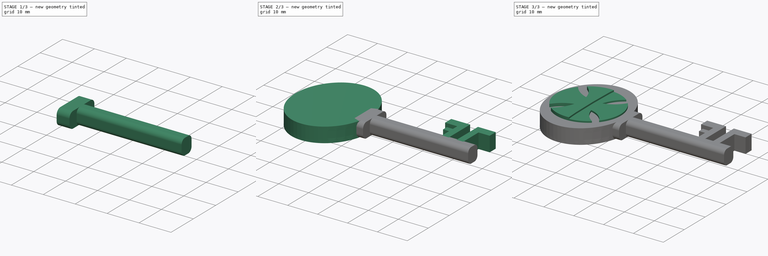
[diagram: build sequence overview — one tinted view per stage of 3, left to right]
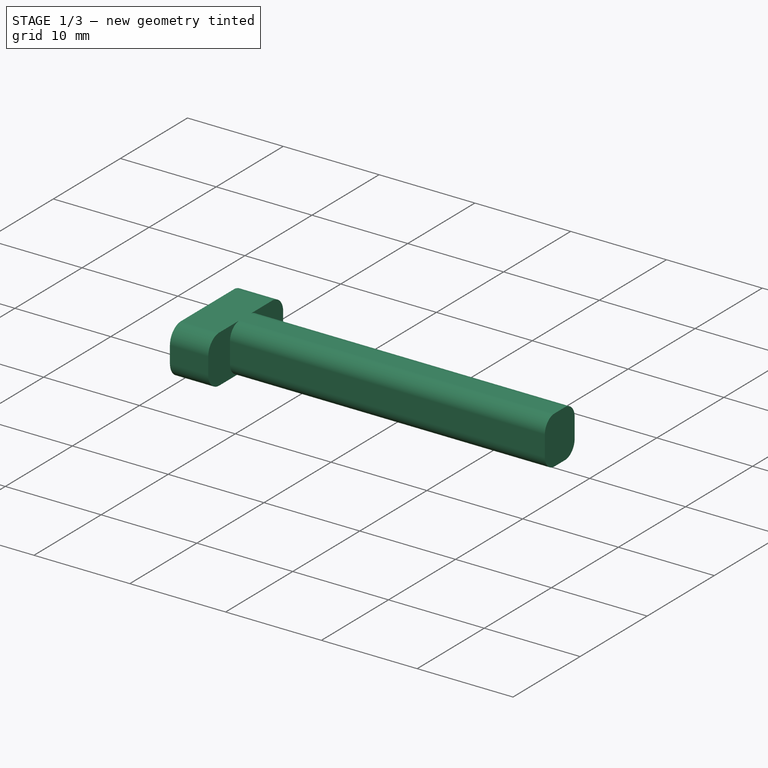
[diagram: stage 1 of 3 — iso view after this stage's code; geometry added in this stage tinted green]
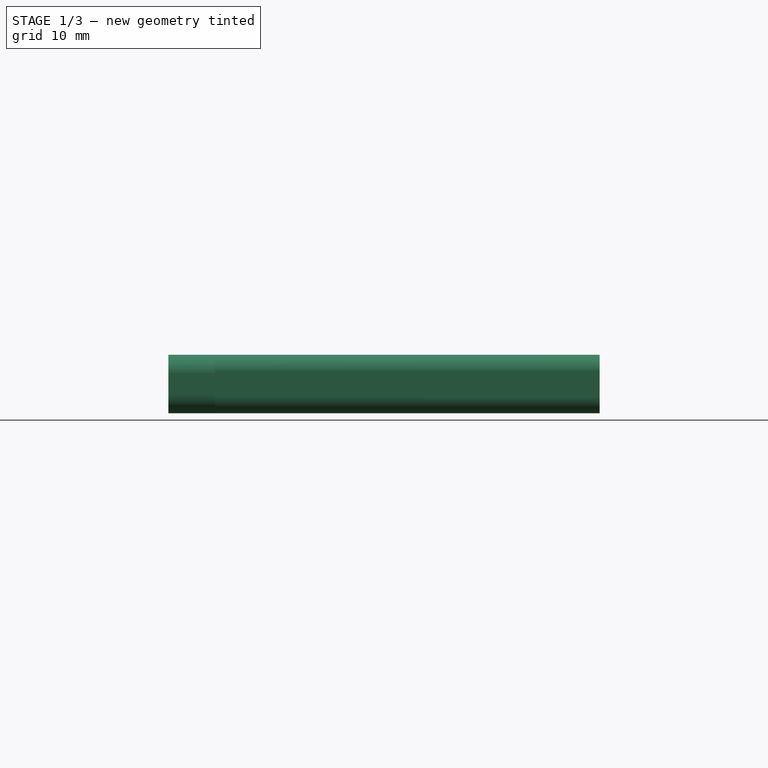
[diagram: stage 1 of 3 — front view after this stage's code; geometry added in this stage tinted green]
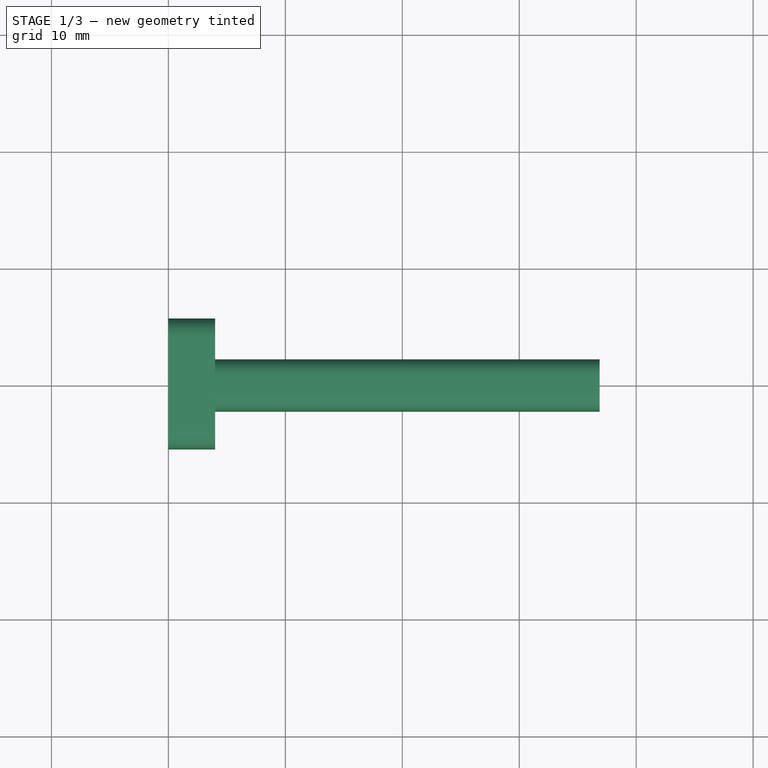
[diagram: stage 1 of 3 — top view after this stage's code; geometry added in this stage tinted green]
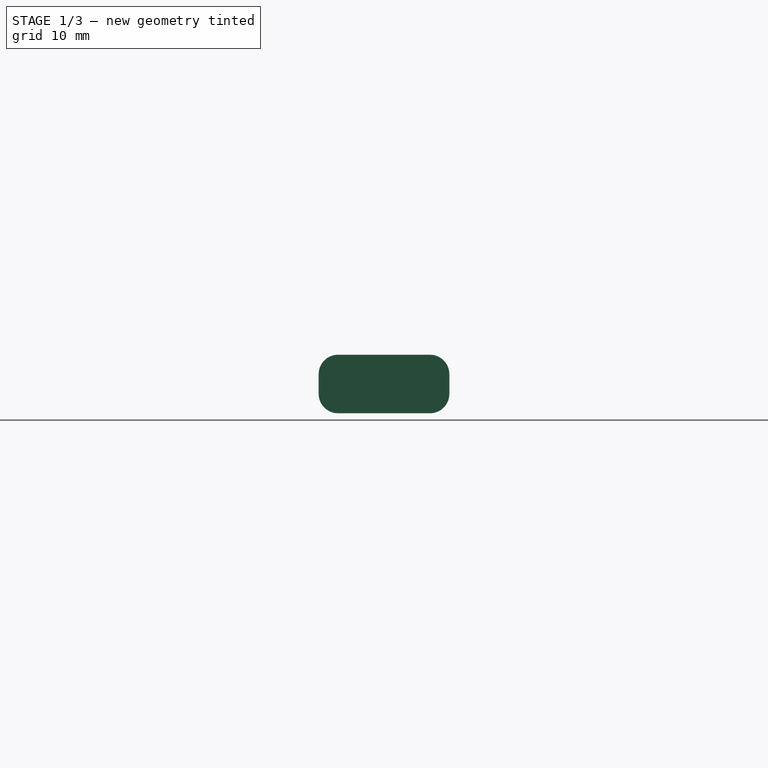
[diagram: stage 1 of 3 — right view after this stage's code; geometry added in this stage tinted green]
FCSTD DOCUMENT  (FreeCAD 0.21R33771 (Git))
Label: llave_teleton
License: All rights reserved
LicenseURL: http://en.wikipedia.org/wiki/All_rights_reserved
objects: Sketcher::SketchObject×9, PartDesign::Pad×5, Image::ImagePlane×1, PartDesign::Pocket×1, PartDesign::Body×1
note: 22 computed .brp shape members not serialized (recipe doc carries the construction recipe); baked Part::Feature solids carry a one-line shape summary decoded from their .brp

FEATURE [Sketcher::SketchObject] Sketch002
  AttachmentOffset = pos=(0,0,46.87) rot=(0,0,1;0rad)
  FullyConstrained = true
  MapMode = 5
  Placement = pos=(46.87,-1.04e-14,1.04e-14) rot=(0.57735,0.57735,0.57735;2.0944rad)
  Support = -> [YZ_Plane002]
  sketch-geometry (8):
    g0: LineSegment StartX=-0.77 StartY=5 StartZ=0 EndX=0.77 EndY=5 EndZ=0
    g1: LineSegment StartX=2.22 StartY=3.55 StartZ=0 EndX=2.22 EndY=1.45 EndZ=0
    g2: LineSegment StartX=0.77 StartY=4e-16 StartZ=0 EndX=-0.77 EndY=4e-16 EndZ=0
    g3: LineSegment StartX=-2.22 StartY=1.45 StartZ=0 EndX=-2.22 EndY=3.55 EndZ=0
    g4: ArcOfCircle CenterX=-0.77 CenterY=3.55 CenterZ=0 NormalX=0 NormalY=0 NormalZ=1 AngleXU=0 Radius=1.45 StartAngle=1.5708 EndAngle=3.14159
    g5: ArcOfCircle CenterX=0.77 CenterY=3.55 CenterZ=0 NormalX=0 NormalY=0 NormalZ=1 AngleXU=0 Radius=1.45 StartAngle=0 EndAngle=1.5708
    g6: ArcOfCircle CenterX=0.77 CenterY=1.45 CenterZ=0 NormalX=0 NormalY=0 NormalZ=1 AngleXU=0 Radius=1.45 StartAngle=4.71239 EndAngle=6.28319
    g7: ArcOfCircle CenterX=-0.77 CenterY=1.45 CenterZ=0 NormalX=0 NormalY=0 NormalZ=1 AngleXU=0 Radius=1.45 StartAngle=3.14159 EndAngle=4.71239
  constraints (19):
    c: Horizontal(g2)
    c: Vertical(g1)
    c: Vertical(g3)
    c: Tangent(g0,g4) = 1.5708
    c: Tangent(g3,g4) = 1.5708
    c: Diameter(g4) = 2.9
    c: Tangent(g0,g5) = 1.5708
    c: Tangent(g1,g5) = 1.5708
    c: Tangent(g1,g6) = 1.5708
    c: Tangent(g2,g6) = 1.5708
    c: Tangent(g3,g7) = 1.5708
    c: Tangent(g2,g7) = 1.5708
    c: Diameter(g5) = 2.9
    c: Diameter(g6) = 2.9
    c: Diameter(g7) = 2.9
    c: Symmetric(g0,g0,g-2)
    c: Distance(g3,g1) = 4.44
    c: Distance(g0,g2) = 5
    c: DistanceY(g-1,g0) = 5
FEATURE [PartDesign::Pad] Pad002
  Direction = (1,-2e-16,3e-16)
  Length = 35
  Length2 = 10
  Placement = pos=(0,0,0) rot=(1,1,1;2.0944rad)
  Profile = -> Sketch002
  ReferenceAxis = -> Sketch002 [N_Axis]
  Reversed = true
  Type = 0
FEATURE [Sketcher::SketchObject] Sketch003
  AttachmentOffset = pos=(0,0,14) rot=(0,0,1;0rad)
  FullyConstrained = false
  MapMode = 5
  Placement = pos=(14,-3.1e-15,3.1e-15) rot=(0.57735,0.57735,0.57735;2.0944rad)
  Support = -> [YZ_Plane002]
  sketch-geometry (8):
    g0: LineSegment StartX=-3.80355 StartY=4e-16 StartZ=0 EndX=4.06645 EndY=4e-16 EndZ=0
    g1: LineSegment StartX=5.71645 StartY=1.65 StartZ=0 EndX=5.71645 EndY=3.35 EndZ=0
    g2: LineSegment StartX=4.06645 StartY=5 StartZ=0 EndX=-3.80355 EndY=5 EndZ=0
    g3: LineSegment StartX=-5.45355 StartY=3.35 StartZ=0 EndX=-5.45355 EndY=1.65 EndZ=0
    g4: ArcOfCircle CenterX=-3.80355 CenterY=3.35 CenterZ=0 NormalX=0 NormalY=0 NormalZ=1 AngleXU=0 Radius=1.65 StartAngle=1.5708 EndAngle=3.14159
    g5: ArcOfCircle CenterX=-3.80355 CenterY=1.65 CenterZ=0 NormalX=0 NormalY=0 NormalZ=1 AngleXU=0 Radius=1.65 StartAngle=3.14159 EndAngle=4.71239
    g6: ArcOfCircle CenterX=4.06645 CenterY=1.65 CenterZ=0 NormalX=0 NormalY=0 NormalZ=1 AngleXU=0 Radius=1.65 StartAngle=4.71239 EndAngle=6.28319
    g7: ArcOfCircle CenterX=4.06645 CenterY=3.35 CenterZ=0 NormalX=0 NormalY=0 NormalZ=1 AngleXU=0 Radius=1.65 StartAngle=0 EndAngle=1.5708
  constraints (19):
    c: Horizontal(g0)
    c: Vertical(g1)
    c: Vertical(g3)
    c: Tangent(g2,g4) = -1.5708
    c: Tangent(g3,g4) = -1.5708
    c: Tangent(g3,g5) = -1.5708
    c: Tangent(g0,g5) = -1.5708
    c: Tangent(g0,g6) = -1.5708
    c: Tangent(g1,g6) = -1.5708
    c: Tangent(g2,g7) = -1.5708
    c: Tangent(g1,g7) = -1.5708
    c: Diameter(g4) = 3.3
    c: Diameter(g7) = 3.3
    c: Diameter(g6) = 3.3
    c: Diameter(g5) = 3.3
    c: Horizontal(g2)
    c: Distance(g2,g0) = 5
    c: Distance(g1,g3) = 11.17
    c: Distance(g-1,g2) = 5
FEATURE [PartDesign::Pad] Pad003
  BaseFeature = -> Pad002
  Direction = (1,-2e-16,3e-16)
  Length = 4
  Length2 = 10
  Placement = pos=(0,0,0) rot=(1,1,1;2.0944rad)
  Profile = -> Sketch003
  ReferenceAxis = -> Sketch003 [N_Axis]
  Reversed = true
  Type = 0
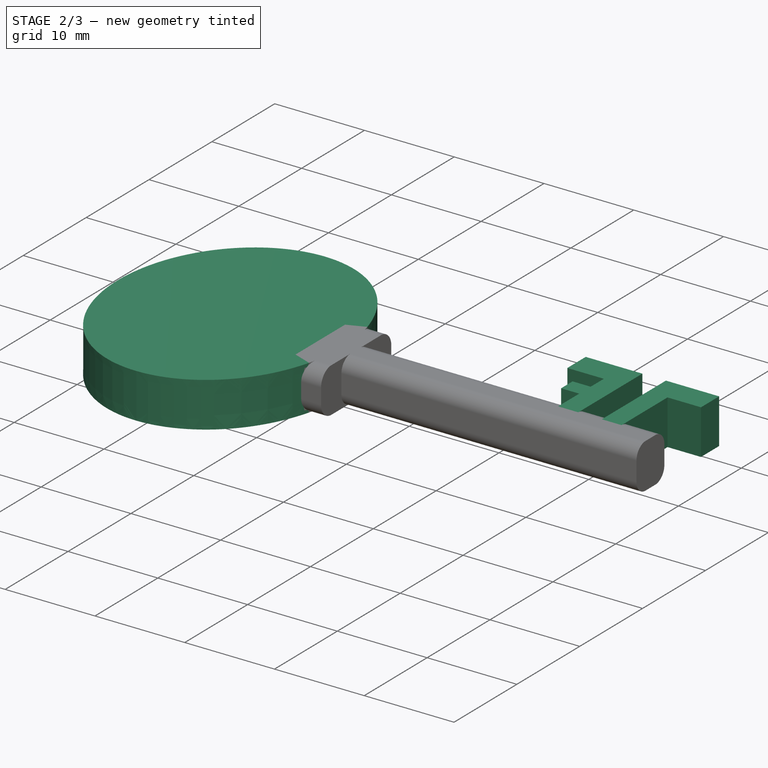
[diagram: stage 2 of 3 — iso view after this stage's code; geometry added in this stage tinted green]
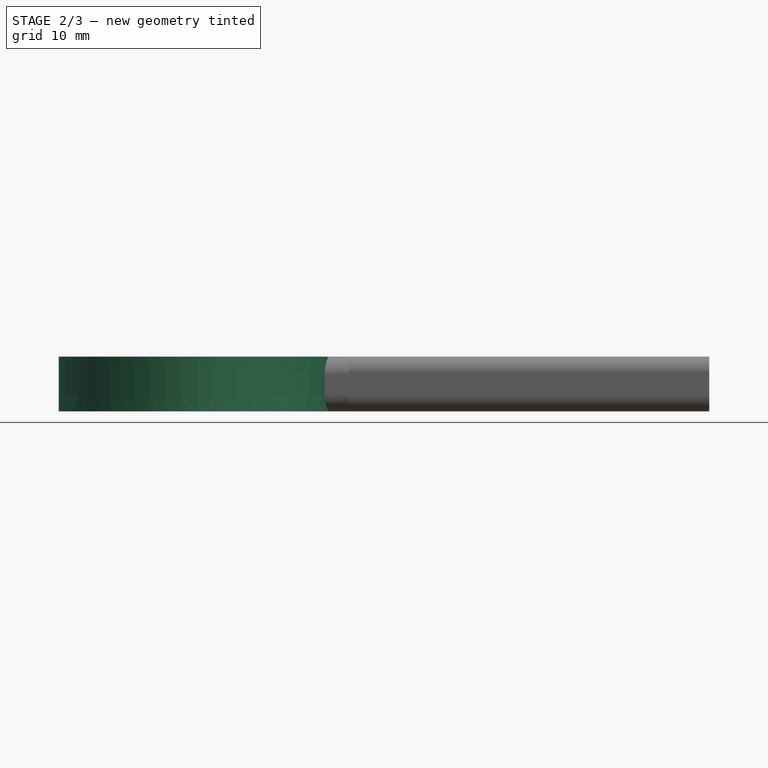
[diagram: stage 2 of 3 — front view after this stage's code; geometry added in this stage tinted green]
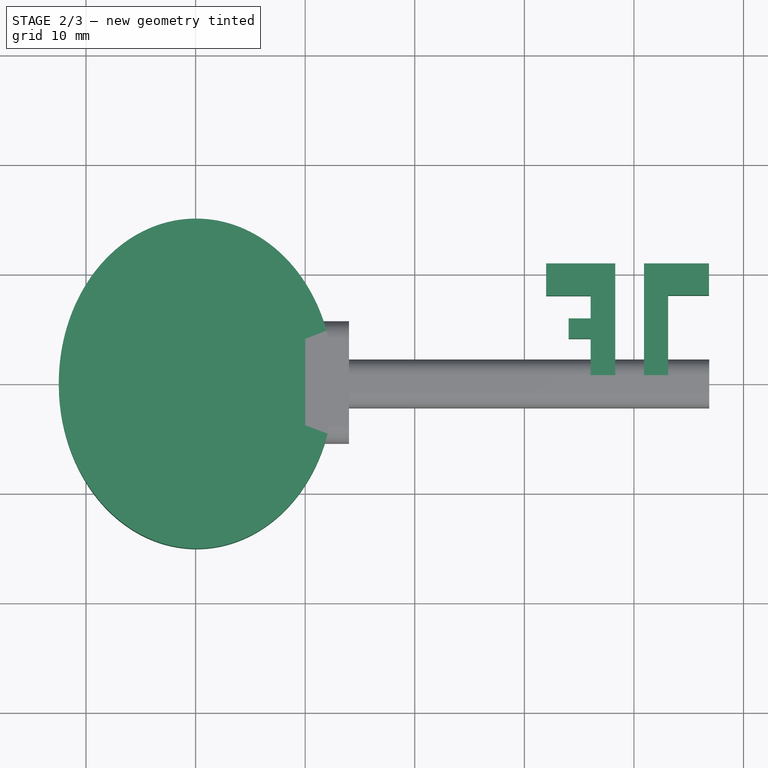
[diagram: stage 2 of 3 — top view after this stage's code; geometry added in this stage tinted green]
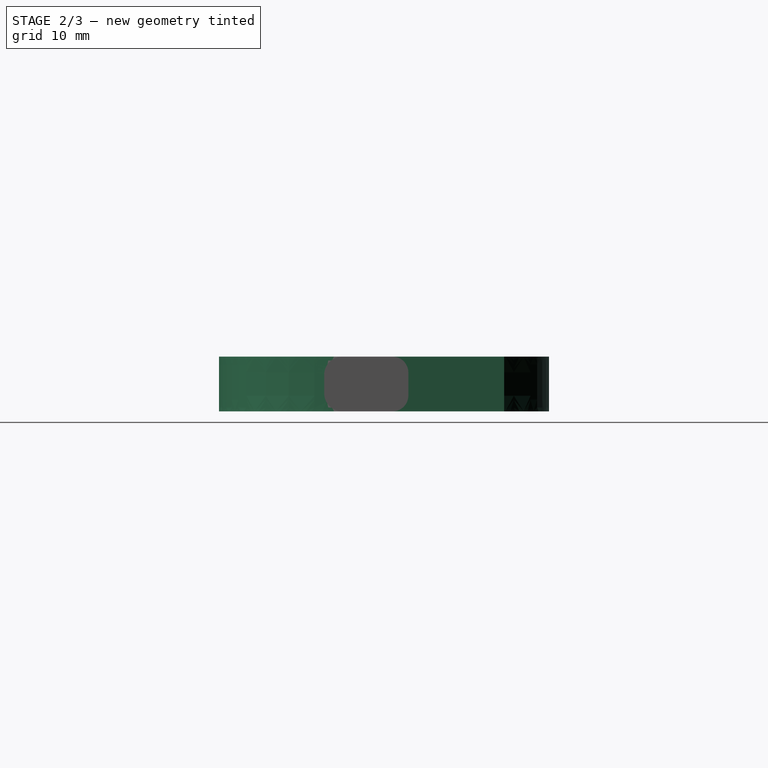
[diagram: stage 2 of 3 — right view after this stage's code; geometry added in this stage tinted green]
FEATURE [Sketcher::SketchObject] Sketch004
  FullyConstrained = false
  MapMode = 5
  Placement = pos=(0,0,5) rot=(0,0,1;0rad)
  sketch-geometry (5):
    g0: Ellipse CenterX=0.065991 CenterY=0 CenterZ=0 NormalX=0 NormalY=0 NormalZ=1 MajorRadius=12.0562 MinorRadius=9.55415 AngleXU=1.57627
    g1: LineSegment StartX=0 StartY=12.056 StartZ=0 EndX=0.131982 EndY=-12.056 EndZ=0
    g2: LineSegment StartX=-9.48802 StartY=-0.0522957 StartZ=0 EndX=9.62 EndY=0.0522957 EndZ=0
    g3: GeomPoint X=0.0257422 Y=7.35313 Z=0
    g4: GeomPoint X=0.10624 Y=-7.35313 Z=0
  constraints (2):
    c: InternalAlignment(g1-g4 -> g0) x4
    c: PointOnObject(g0,g-1)
FEATURE [Sketcher::SketchObject] Sketch005
  FullyConstrained = false
  sketch-geometry (4):
    g0: BSplineCurve PolesCount=15 KnotsCount=2 Degree=14 IsPeriodic=0
    g1: BSplineCurve PolesCount=15 KnotsCount=2 Degree=14 IsPeriodic=0
    g2: BSplineCurve PolesCount=15 KnotsCount=2 Degree=14 IsPeriodic=0
    g3: BSplineCurve PolesCount=15 KnotsCount=2 Degree=14 IsPeriodic=0
  constraints (4):
    c: Coincident(g0,g1)
    c: Coincident(g1,g2)
    c: Coincident(g2,g3)
    c: Coincident(g3,g0)
FEATURE [PartDesign::Pad] Pad004
  BaseFeature = -> Pad003
  Direction = (0,0,1)
  Length = 5
  Length2 = 10
  Placement = pos=(0,0,0) rot=(1,1,1;2.0944rad)
  Profile = -> Sketch005
  ReferenceAxis = -> Sketch005 [N_Axis]
  Type = 0
FEATURE [Sketcher::SketchObject] Sketch006
  FullyConstrained = false
  MapMode = 5
  Support = -> [XY_Plane002]
  sketch-geometry (16):
    g0: LineSegment StartX=43.1218 StartY=8.07634 StartZ=0 EndX=43.1218 EndY=0.549987 EndZ=0
    g1: LineSegment StartX=43.1218 StartY=0.549987 StartZ=0 EndX=40.9171 EndY=0.549987 EndZ=0
    g2: LineSegment StartX=40.9171 StartY=0.549987 StartZ=0 EndX=40.9171 EndY=10.9652 EndZ=0
    g3: LineSegment StartX=46.8469 StartY=10.9652 StartZ=0 EndX=40.9171 EndY=10.9652 EndZ=0
    g4: LineSegment StartX=43.1218 StartY=8.07634 StartZ=0 EndX=46.8469 EndY=8.07634 EndZ=0
    g5: LineSegment StartX=46.8469 StartY=8.07634 StartZ=0 EndX=46.8469 EndY=10.9652 EndZ=0
    g6: LineSegment StartX=31.9843 StartY=10.9652 StartZ=0 EndX=38.2943 EndY=10.9652 EndZ=0
    g7: LineSegment StartX=36.0516 StartY=8.03833 StartZ=0 EndX=31.9843 EndY=8.03833 EndZ=0
    g8: LineSegment StartX=31.9843 StartY=8.03833 StartZ=0 EndX=31.9843 EndY=10.9652 EndZ=0
    g9: LineSegment StartX=36.0516 StartY=8.03833 StartZ=0 EndX=36.0516 EndY=5.94768 EndZ=0
    g10: LineSegment StartX=36.0516 StartY=0.626011 StartZ=0 EndX=38.2943 EndY=0.626011 EndZ=0
    g11: LineSegment StartX=38.2943 StartY=0.626011 StartZ=0 EndX=38.2943 EndY=10.9652 EndZ=0
    g12: LineSegment StartX=34.0369 StartY=5.94768 StartZ=0 EndX=36.0516 EndY=5.94768 EndZ=0
    g13: LineSegment StartX=34.0369 StartY=4.12311 StartZ=0 EndX=34.0369 EndY=5.94768 EndZ=0
    g14: LineSegment StartX=36.0516 StartY=4.12311 StartZ=0 EndX=34.0369 EndY=4.12311 EndZ=0
    g15: LineSegment StartX=36.0516 StartY=4.12311 StartZ=0 EndX=36.0516 EndY=0.626011 EndZ=0
  constraints (29):
    c: Coincident(g0,g1)
    c: Coincident(g1,g2)
    c: Horizontal(g1)
    c: Vertical(g0)
    c: Vertical(g2)
    c: Coincident(g4,g5)
    c: Coincident(g5,g3)
    c: Horizontal(g3)
    c: Horizontal(g4)
    c: Vertical(g5)
    c: Coincident(g7,g8)
    c: Coincident(g8,g6)
    c: Horizontal(g6)
    c: Horizontal(g7)
    c: Vertical(g8)
    c: Coincident(g15,g10)
    c: Coincident(g10,g11)
    c: Horizontal(g10)
    c: Vertical(g9)
    c: Vertical(g11)
    c: Coincident(g14,g13)
    c: Coincident(g13,g12)
    c: Horizontal(g12)
    c: Vertical(g13)
    c: Coincident(g7,g9)
    c: Coincident(g9,g12)
    c: Coincident(g15,g14)
    c: Coincident(g0,g4)
    c: Coincident(g6,g11)
FEATURE [Sketcher::SketchObject] Sketch007
  FullyConstrained = false
  MapMode = 5
  Placement = pos=(46.87,-3.12e-14,1.56e-14) rot=(0.57735,0.57735,0.57735;2.0944rad)
  Support = -> [Pad004]
  sketch-geometry (8):
    g0: LineSegment StartX=8.40197 StartY=-3e-16 StartZ=0 EndX=10.402 EndY=-3e-16 EndZ=0
    g1: LineSegment StartX=10.902 StartY=0.5 StartZ=0 EndX=10.902 EndY=4.5 EndZ=0
    g2: LineSegment StartX=10.402 StartY=5 StartZ=0 EndX=8.40197 EndY=5 EndZ=0
    g3: LineSegment StartX=7.90197 StartY=4.5 StartZ=0 EndX=7.90197 EndY=0.5 EndZ=0
    g4: ArcOfCircle CenterX=10.402 CenterY=4.5 CenterZ=0 NormalX=0 NormalY=0 NormalZ=1 AngleXU=0 Radius=0.5 StartAngle=0 EndAngle=1.5708
    g5: ArcOfCircle CenterX=10.402 CenterY=0.5 CenterZ=0 NormalX=0 NormalY=0 NormalZ=1 AngleXU=0 Radius=0.5 StartAngle=4.71239 EndAngle=6.28319
    g6: ArcOfCircle CenterX=8.40197 CenterY=0.5 CenterZ=0 NormalX=0 NormalY=0 NormalZ=1 AngleXU=0 Radius=0.5 StartAngle=3.14159 EndAngle=4.71239
    g7: ArcOfCircle CenterX=8.40197 CenterY=4.5 CenterZ=0 NormalX=0 NormalY=0 NormalZ=1 AngleXU=0 Radius=0.5 StartAngle=1.5708 EndAngle=3.14159
  constraints (19):
    c: Horizontal(g0)
    c: Horizontal(g2)
    c: Vertical(g1)
    c: Vertical(g3)
    c: Tangent(g2,g4) = -1.5708
    c: Tangent(g1,g4) = -1.5708
    c: Tangent(g1,g5) = -1.5708
    c: Tangent(g0,g5) = -1.5708
    c: Tangent(g3,g6) = -1.5708
    c: Tangent(g0,g6) = -1.5708
    c: Tangent(g2,g7) = -1.5708
    c: Tangent(g3,g7) = -1.5708
    c: Diameter(g7) = 1
    c: Diameter(g4) = 1
    c: Diameter(g5) = 1
    c: Diameter(g6) = 1
    c: Distance(g2,g0) = 5
    c: DistanceY(g-1,g2) = 5
    c: Distance(g3,g1) = 3
FEATURE [Sketcher::SketchObject] Sketch008
  AttachmentOffset = pos=(0,0,-0.5) rot=(0,0,1;0rad)
  FullyConstrained = false
  MapMode = 5
  Placement = pos=(7e-16,1.72,-1.7e-15) rot=(0.57735,0.57735,0.57735;4.18879rad)
  Support = -> [Pad004]
  sketch-geometry (8):
    g0: LineSegment StartX=0.5 StartY=43.2242 StartZ=0 EndX=4.5 EndY=43.2242 EndZ=0
    g1: LineSegment StartX=5 StartY=42.7242 StartZ=0 EndX=5 EndY=40.7242 EndZ=0
    g2: LineSegment StartX=4.5 StartY=40.2242 StartZ=0 EndX=0.5 EndY=40.2242 EndZ=0
    g3: LineSegment StartX=1e-16 StartY=40.7242 StartZ=0 EndX=1e-16 EndY=42.7242 EndZ=0
    g4: ArcOfCircle CenterX=4.5 CenterY=42.7242 CenterZ=0 NormalX=0 NormalY=0 NormalZ=1 AngleXU=0 Radius=0.5 StartAngle=-2.7e-15 EndAngle=1.5708
    g5: ArcOfCircle CenterX=4.5 CenterY=40.7242 CenterZ=0 NormalX=0 NormalY=0 NormalZ=1 AngleXU=0 Radius=0.5 StartAngle=4.71239 EndAngle=6.28319
    g6: ArcOfCircle CenterX=0.5 CenterY=40.7242 CenterZ=0 NormalX=0 NormalY=0 NormalZ=1 AngleXU=0 Radius=0.5 StartAngle=3.14159 EndAngle=4.71239
    g7: ArcOfCircle CenterX=0.5 CenterY=42.7242 CenterZ=0 NormalX=0 NormalY=0 NormalZ=1 AngleXU=0 Radius=0.5 StartAngle=1.5708 EndAngle=3.14159
  constraints (19):
    c: Horizontal(g0)
    c: Horizontal(g2)
    c: Vertical(g1)
    c: Vertical(g3)
    c: Tangent(g1,g4) = 1.5708
    c: Tangent(g0,g4) = 1.5708
    c: Tangent(g1,g5) = 1.5708
    c: Tangent(g2,g5) = 1.5708
    c: Tangent(g2,g6) = 1.5708
    c: Tangent(g3,g6) = 1.5708
    c: Tangent(g0,g7) = 1.5708
    c: Tangent(g3,g7) = 1.5708
    c: Diameter(g4) = 1
    c: Diameter(g5) = 1
    c: Diameter(g6) = 1
    c: Diameter(g7) = 1
    c: DistanceX(g-2,g1) = 5
    c: Distance(g3,g1) = 5
    c: Distance(g0,g2) = 3
FEATURE [PartDesign::Pad] Pad005
  BaseFeature = -> Pad004
  Direction = (0,0,1)
  Length = 5
  Length2 = 10
  Placement = pos=(0,0,0) rot=(1,1,1;2.0944rad)
  Profile = -> Sketch006
  ReferenceAxis = -> Sketch006 [N_Axis]
  Type = 0
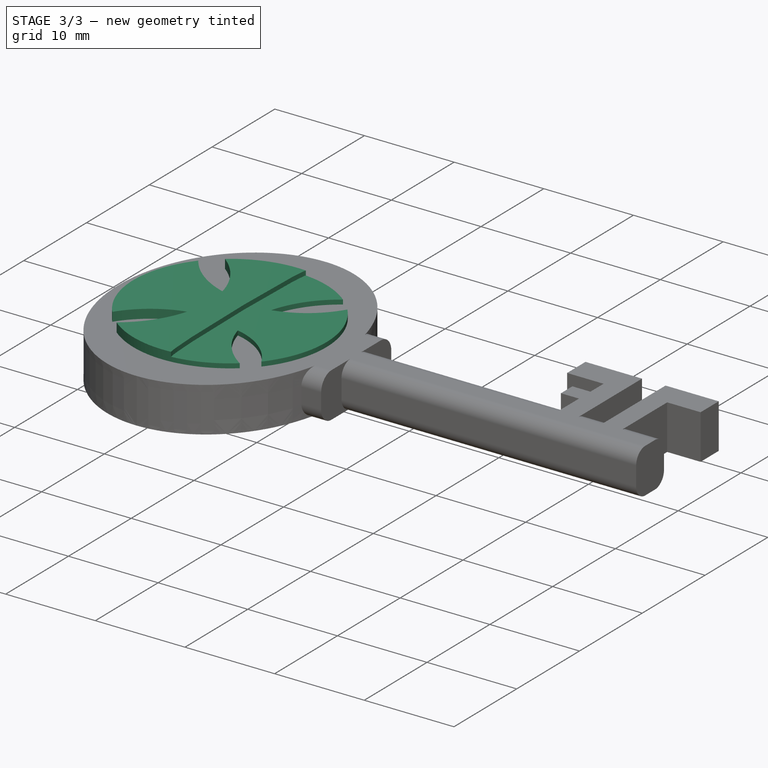
[diagram: stage 3 of 3 — iso view after this stage's code; geometry added in this stage tinted green]
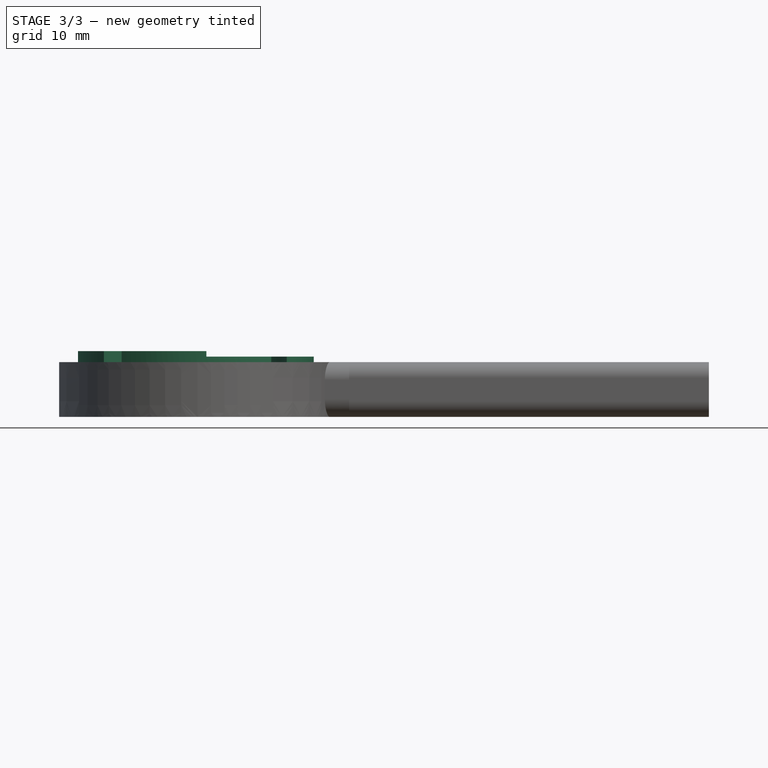
[diagram: stage 3 of 3 — front view after this stage's code; geometry added in this stage tinted green]
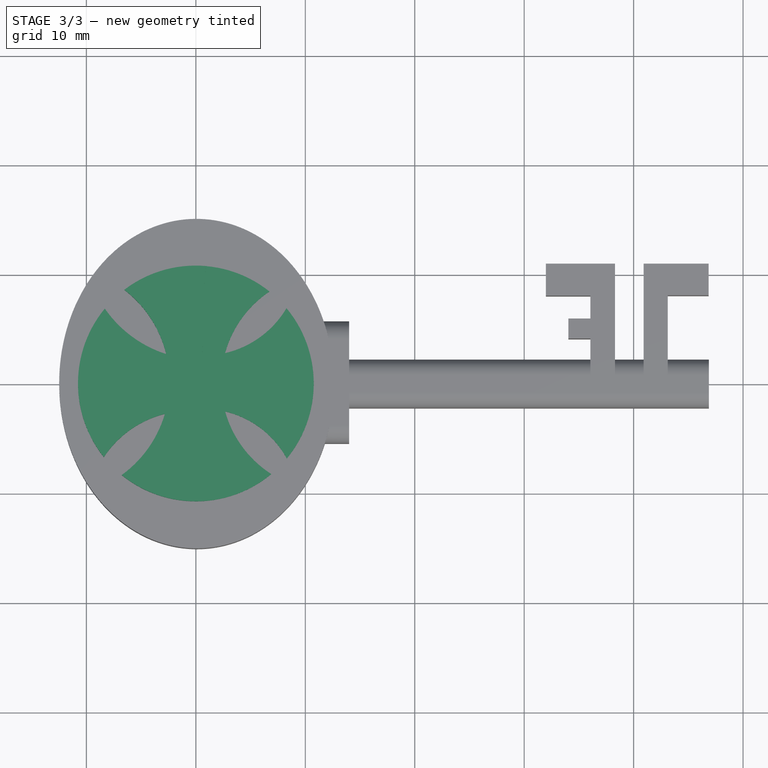
[diagram: stage 3 of 3 — top view after this stage's code; geometry added in this stage tinted green]
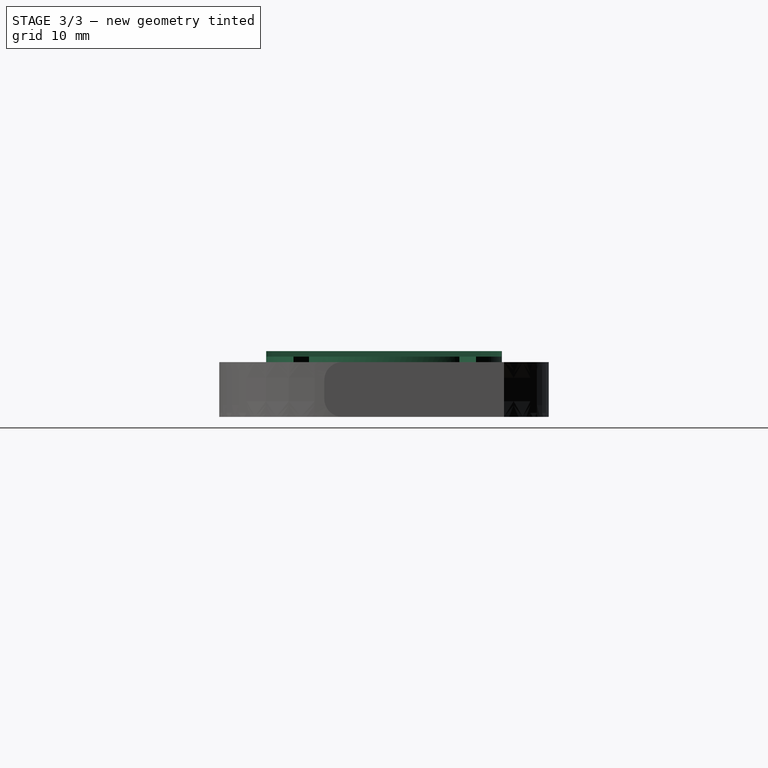
[diagram: stage 3 of 3 — right view after this stage's code; geometry added in this stage tinted green]
FEATURE [Sketcher::SketchObject] Sketch
  FullyConstrained = false
  MapMode = 5
  Placement = pos=(-3.3e-15,1.1e-15,5) rot=(0,0,-1;1.5708rad)
  Support = -> [Pad005]
  sketch-geometry (12):
    g0: ArcOfCircle CenterX=0 CenterY=0 CenterZ=0 NormalX=0 NormalY=0 NormalZ=1 AngleXU=0 Radius=10.77 StartAngle=2.46673 EndAngle=3.79405
    g1: ArcOfCircle CenterX=-11.397 CenterY=0.674257 CenterZ=0 NormalX=0 NormalY=0 NormalZ=1 AngleXU=0 Radius=8.845 StartAngle=0.227563 EndAngle=1.03547
    g2: ArcOfCircle CenterX=-13.0164 CenterY=0.603528 CenterZ=0 NormalX=0 NormalY=0 NormalZ=1 AngleXU=0 Radius=10.8512 StartAngle=5.31786 EndAngle=5.97313
    g3: ArcOfCircle CenterX=-0.122169 CenterY=12.2882 CenterZ=0 NormalX=0 NormalY=0 NormalZ=1 AngleXU=0 Radius=9.97891 StartAngle=3.73247 EndAngle=4.44278
    g4: ArcOfCircle CenterX=-0.181485 CenterY=-12.9627 CenterZ=0 NormalX=0 NormalY=0 NormalZ=1 AngleXU=0 Radius=10.5559 StartAngle=0.62623 EndAngle=1.28671
    g5: ArcOfCircle CenterX=11.9444 CenterY=-0.518845 CenterZ=0 NormalX=0 NormalY=0 NormalZ=1 AngleXU=0 Radius=9.45405 StartAngle=3.38855 EndAngle=4.12847
    g6: ArcOfCircle CenterX=0 CenterY=0 CenterZ=0 NormalX=0 NormalY=0 NormalZ=1 AngleXU=0 Radius=10.77 StartAngle=4.0242 EndAngle=5.38765
    g7: ArcOfCircle CenterX=-0.181485 CenterY=-12.9627 CenterZ=0 NormalX=0 NormalY=0 NormalZ=1 AngleXU=0 Radius=10.5559 StartAngle=1.81001 EndAngle=2.48736
    g8: ArcOfCircle CenterX=-0.122169 CenterY=12.2882 CenterZ=0 NormalX=0 NormalY=0 NormalZ=1 AngleXU=0 Radius=9.97891 StartAngle=4.9841 EndAngle=5.71219
    g9: ArcOfCircle CenterX=0 CenterY=0 CenterZ=0 NormalX=0 NormalY=0 NormalZ=1 AngleXU=0 Radius=10.77 StartAngle=0.881336 EndAngle=2.26436
    g10: ArcOfCircle CenterX=11.0251 CenterY=0.674026 CenterZ=0 NormalX=0 NormalY=0 NormalZ=1 AngleXU=0 Radius=8.70236 StartAngle=2.07105 EndAngle=2.90954
    g11: ArcOfCircle CenterX=0 CenterY=0 CenterZ=0 NormalX=0 NormalY=0 NormalZ=1 AngleXU=0 Radius=10.77 StartAngle=5.60273 EndAngle=6.97793
  constraints (25):
    c: Coincident(g0,g-1)
    c: Diameter(g0) = 21.54
    c: Diameter(g1) = 17.69
    c: Coincident(g1,g9)
    c: Coincident(g3,g0)
    c: Equal(g0,g6)
    c: Coincident(g0,g7)
    c: Coincident(g0,g6)
    c: Coincident(g2,g6)
    c: Equal(g4,g7)
    c: Coincident(g7,g2)
    c: Coincident(g4,g7)
    c: Equal(g3,g8)
    c: Coincident(g8,g10)
    c: Coincident(g3,g8)
    c: Equal(g6,g9)
    c: Coincident(g6,g9)
    c: Coincident(g10,g9)
    c: Coincident(g5,g4)
    c: Equal(g6,g11)
    c: Coincident(g6,g11)
    c: Coincident(g4,g11)
    c: Coincident(g5,g6)
    c: Coincident(g8,g11)
    c: Coincident(g3,g1)
FEATURE [Image::ImagePlane] Logo_Telet__n  label="Logo_Teletón"
  Placement = pos=(0,0,5) rot=(0,0,1;0rad)
  XSize = 25
  YSize = 25
FEATURE [PartDesign::Pad] Pad
  BaseFeature = -> Pad005
  Direction = (-7e-16,2e-16,1)
  Length = 1
  Length2 = 10
  Placement = pos=(0,0,0) rot=(1,1,1;2.0944rad)
  Profile = -> Sketch
  ReferenceAxis = -> Sketch [N_Axis]
  Type = 0
FEATURE [Sketcher::SketchObject] Sketch009
  AttachmentOffset = pos=(0,1,0) rot=(0,0,1;0rad)
  FullyConstrained = false
  MapMode = 5
  Placement = pos=(1,1.8e-15,6) rot=(0,0,-1;1.5708rad)
  Support = -> [Pad]
  sketch-geometry (9):
    g0: ArcOfEllipse CenterX=0 CenterY=0 CenterZ=0 NormalX=0 NormalY=0 NormalZ=1 MajorRadius=10.7741 MinorRadius=0.438108 AngleXU=-3.14159 StartAngle=0 EndAngle=3.14159
    g1: LineSegment StartX=-10.7741 StartY=0 StartZ=0 EndX=10.7741 EndY=0 EndZ=0
    g2: LineSegment StartX=0 StartY=-0.438108 StartZ=0 EndX=0 EndY=0.438108 EndZ=0
    g3: GeomPoint X=-10.7652 Y=0 Z=0
    g4: GeomPoint X=10.7652 Y=0 Z=0
    g5: LineSegment StartX=-10.7741 StartY=9.97005 StartZ=0 EndX=10.7741 EndY=9.97005 EndZ=0
    g6: LineSegment StartX=10.7741 StartY=9.97005 StartZ=0 EndX=10.7741 EndY=0 EndZ=0
    g7: LineSegment StartX=10.7741 StartY=0 StartZ=0 EndX=-10.7741 EndY=0 EndZ=0
    g8: LineSegment StartX=-10.7741 StartY=0 StartZ=0 EndX=-10.7741 EndY=9.97005 EndZ=0
  constraints (14):
    c: InternalAlignment(g1-g4 -> g0) x4
    c: Coincident(g0,g-1)
    c: Coincident(g5,g6)
    c: Coincident(g6,g7)
    c: Coincident(g7,g8)
    c: Coincident(g8,g5)
    c: Horizontal(g5)
    c: Horizontal(g7)
    c: Vertical(g6)
    c: Vertical(g8)
    c: Coincident(g6,g1)
    c: Coincident(g7,g1)
    c: Coincident(g0,g1)
    c: PointOnObject(g0,g1)
FEATURE [PartDesign::Pocket] Pocket
  BaseFeature = -> Pad
  Direction = (1e-15,-3e-16,-1)
  Length = 0.5
  Length2 = 5
  Placement = pos=(0,0,0) rot=(1,1,1;2.0944rad)
  Profile = -> Sketch009
  ReferenceAxis = -> Sketch009 [N_Axis]
  Type = 0
FEATURE [PartDesign::Body] Body002
  Group = -> [Sketch002,Pad002,Sketch003,Pad003,Sketch004,Sketch005,Pad004,Sketch006,Sketch007,Sketch008,Pad005,Sketch,Pad,Sketch009,Pocket]
  Origin = -> Origin002
  Tip = -> Pocket
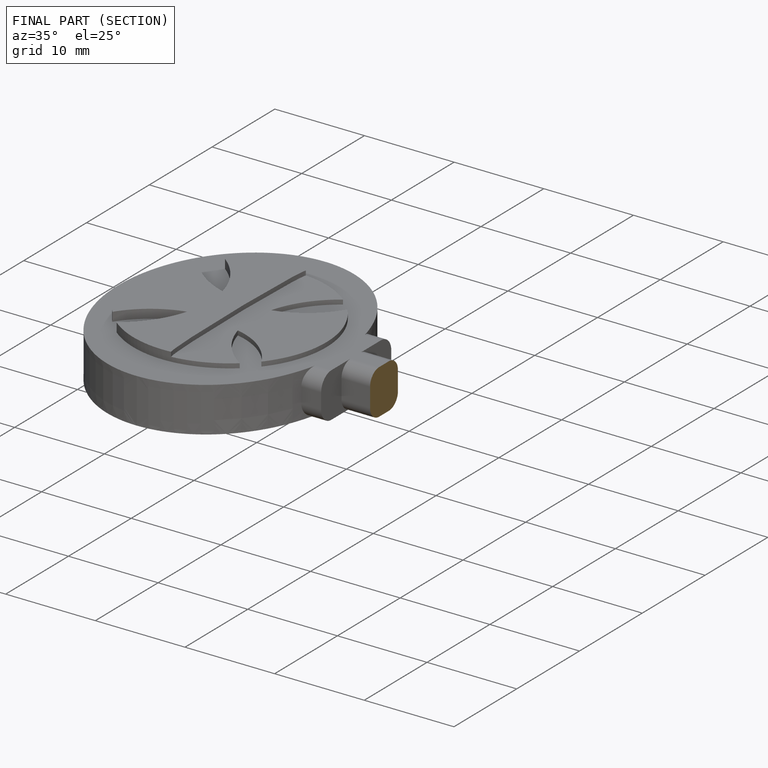
[diagram: finished part — half-section view (interior)]
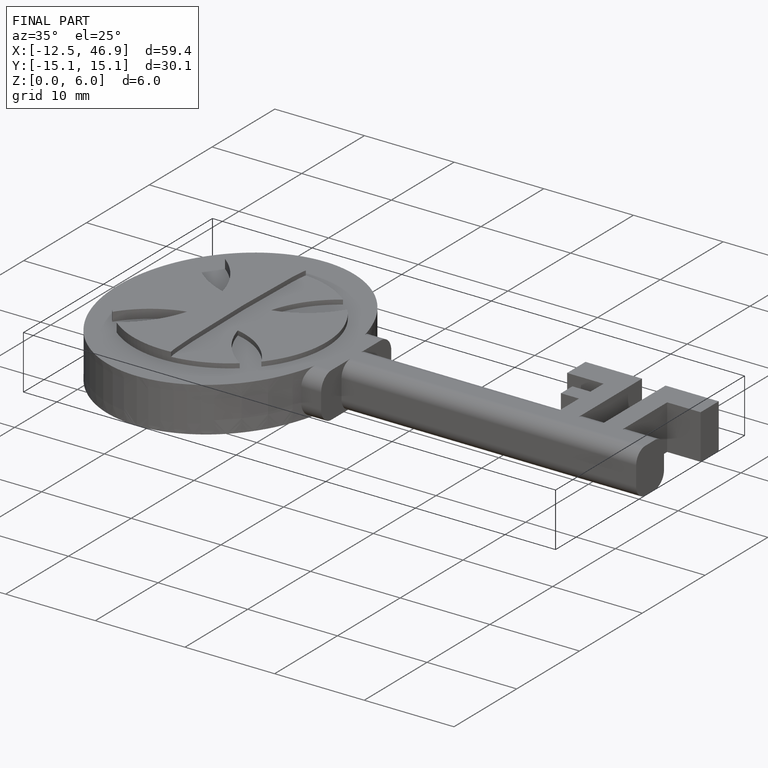
[diagram: finished part — iso view with bounding-box wireframe]
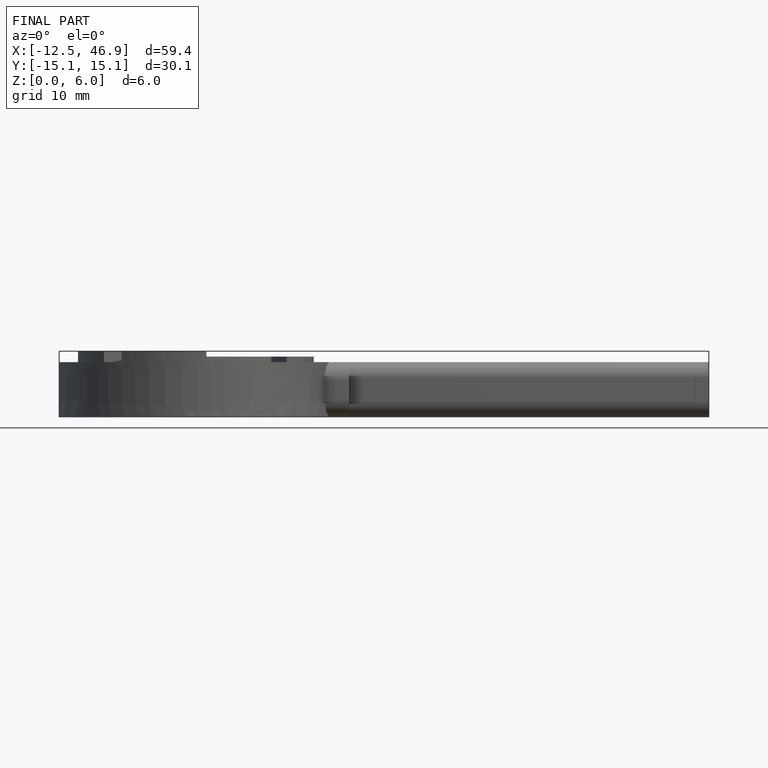
[diagram: finished part — front view with bounding-box wireframe]
